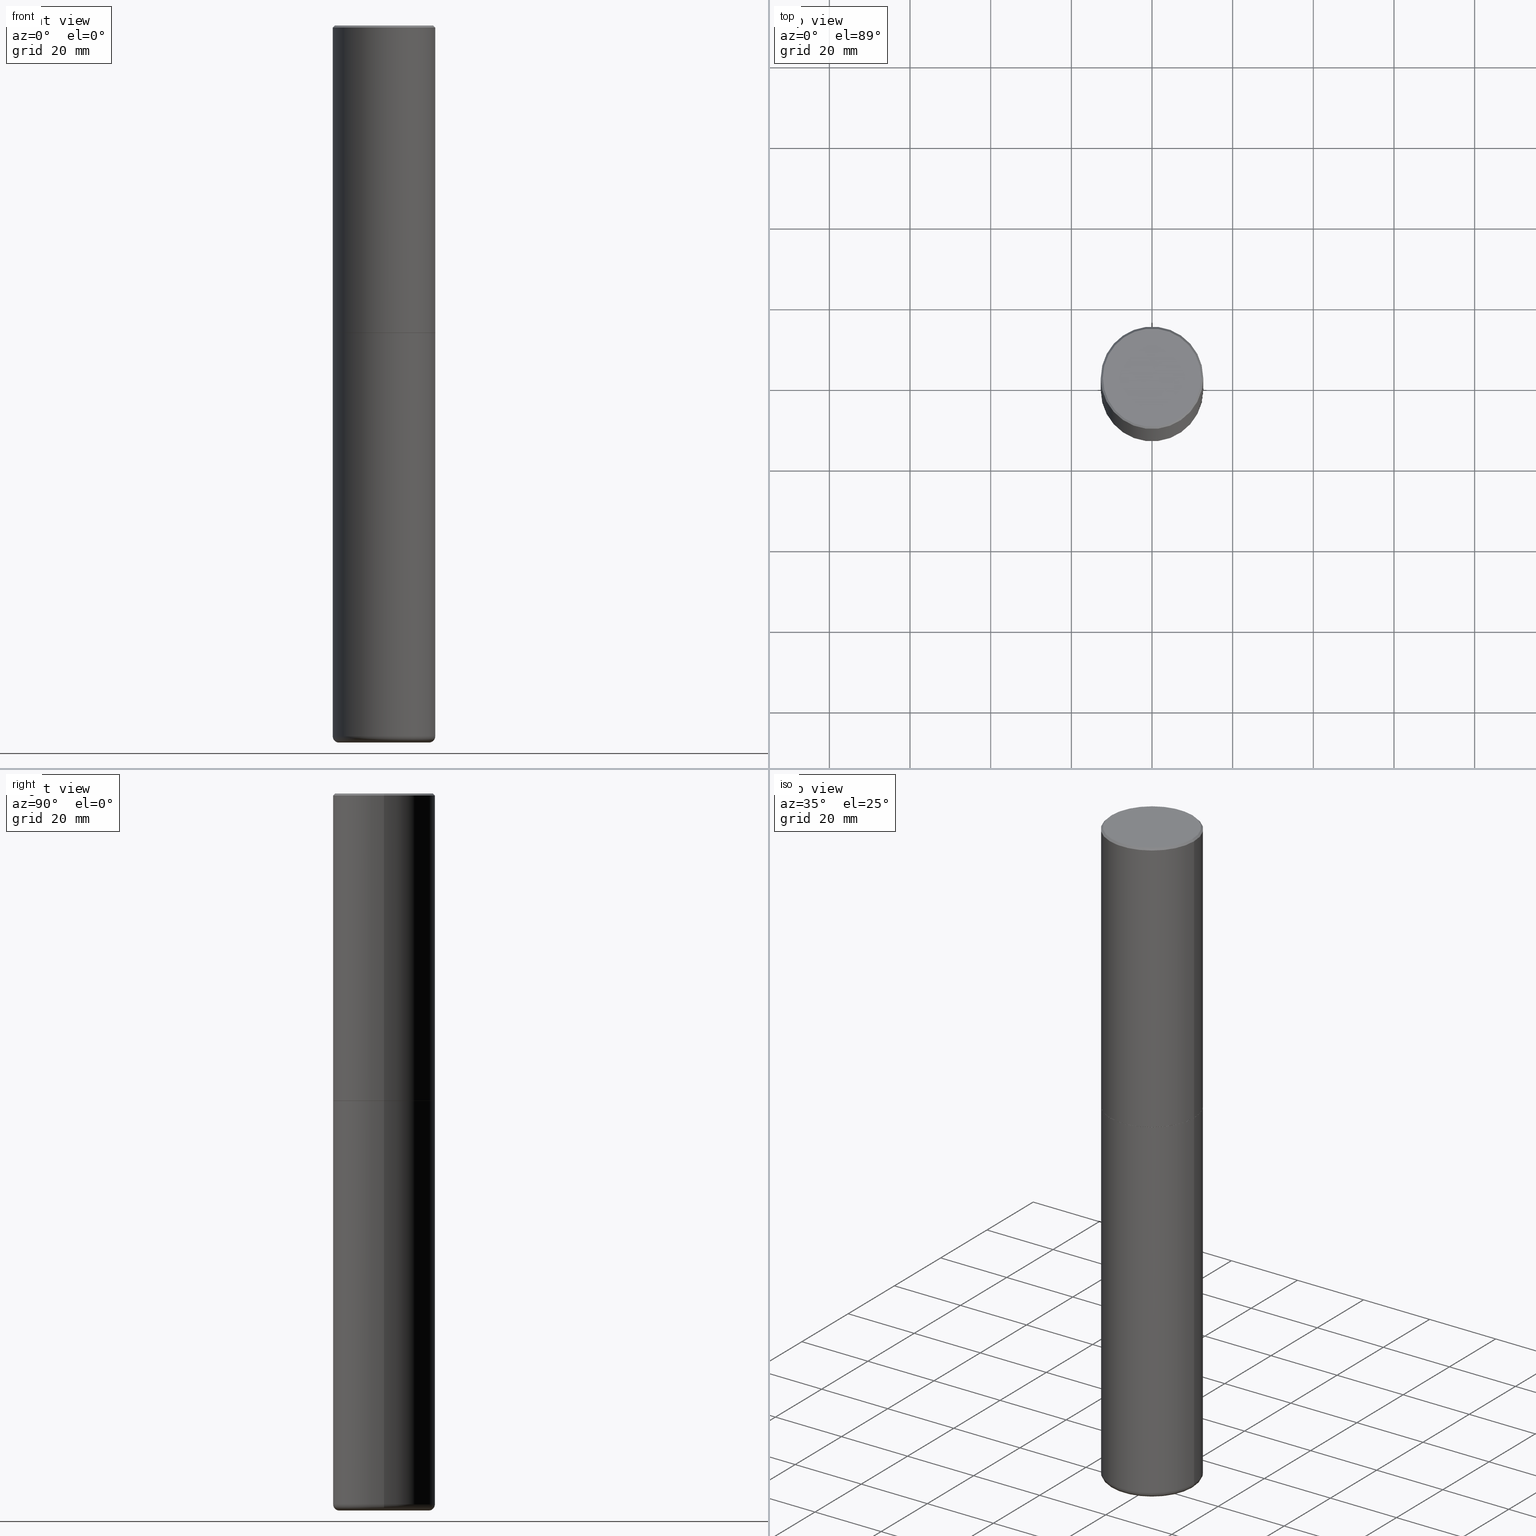
[diagram: canonical four-view strip — front | top / right | iso, engineering-drawing reading convention]
A machine part, canonical four-view strip (front | top / right | iso — engineering-drawing reading convention). The complete STEP part file that produces these views, byte-faithful:
ISO-10303-21;
HEADER;
FILE_DESCRIPTION (( 'STEP AP203' ),
    '1' );
FILE_NAME ('77334.STEP',
    '2024-03-06T17:10:16',
    ( '' ),
    ( '' ),
    'SwSTEP 2.0',
    'SolidWorks 2023',
    '' );
FILE_SCHEMA (( 'CONFIG_CONTROL_DESIGN' ));
ENDSEC;

DATA;
#1 = MECHANICAL_CONTEXT ( 'NONE', #273, 'mechanical' ) ;
#2 = EDGE_CURVE ( 'NONE', #111, #370, #243, .T. ) ;
#3 = CARTESIAN_POINT ( 'NONE',  ( 4.890937612370299433E-31, -6.982962677686328587E-17, -0.02000000000000010797 ) ) ;
#4 = CC_DESIGN_PERSON_AND_ORGANIZATION_ASSIGNMENT ( #119, #381, ( #388 ) ) ;
#5 = CARTESIAN_POINT ( 'NONE',  ( 7.336406418555408669E-29, -1.047444401652943478E-14, -2.999999999999999556 ) ) ;
#6 = CALENDAR_DATE ( 2024, 6, 3 ) ;
#7 = DIRECTION ( 'NONE',  ( 1.000000000000000000, -6.982962677686266711E-15, 0.000000000000000000 ) ) ;
#8 = EDGE_CURVE ( 'NONE', #112, #251, #306, .T. ) ;
#9 = DIRECTION ( 'NONE',  ( 1.000000000000000000, -6.982962677686269077E-15, 0.000000000000000000 ) ) ;
#10 = DIRECTION ( 'NONE',  ( -2.445468806185136597E-29, 3.491481338843145583E-15, 1.000000000000000000 ) ) ;
#11 = MANIFOLD_SOLID_BREP ( 'Body-Move/Copy2[1]', #140 ) ;
#12 = LINE ( 'NONE', #134, #163 ) ;
#13 = DIRECTION ( 'NONE',  ( -2.445468806185136597E-29, 3.491481338843145583E-15, 1.000000000000000000 ) ) ;
#14 = ORIENTED_EDGE ( 'NONE', *, *, #53, .F. ) ;
#15 = DIMENSIONAL_EXPONENTS ( 1.000000000000000000, 0.000000000000000000, 0.000000000000000000, 0.000000000000000000, 0.000000000000000000, 0.000000000000000000, 0.000000000000000000 ) ;
#16 = VERTEX_POINT ( 'NONE', #216 ) ;
#17 = ORIENTED_EDGE ( 'NONE', *, *, #8, .F. ) ;
#18 = TOROIDAL_SURFACE ( 'NONE', #89, 0.4400000000000000022, 0.06000000000000051820 ) ;
#19 = ORIENTED_EDGE ( 'NONE', *, *, #115, .F. ) ;
#20 = EDGE_LOOP ( 'NONE', ( #276, #247, #108, #43 ) ) ;
#21 = DIRECTION ( 'NONE',  ( -1.000000000000000000, 6.982962677686265922E-15, 0.000000000000000000 ) ) ;
#22 = EDGE_CURVE ( 'NONE', #258, #331, #172, .T. ) ;
#23 = ORIENTED_EDGE ( 'NONE', *, *, #115, .T. ) ;
#24 = AXIS2_PLACEMENT_3D ( 'NONE', #320, #356, #92 ) ;
#25 = EDGE_CURVE ( 'NONE', #258, #281, #99, .T. ) ;
#26 = PLANE ( 'NONE',  #377 ) ;
#27 = APPLICATION_PROTOCOL_DEFINITION ( 'international standard', 'config_control_design', 1994, #273 ) ;
#28 = ORIENTED_EDGE ( 'NONE', *, *, #68, .T. ) ;
#29 =( GEOMETRIC_REPRESENTATION_CONTEXT ( 3 ) GLOBAL_UNCERTAINTY_ASSIGNED_CONTEXT ( ( #252 ) ) GLOBAL_UNIT_ASSIGNED_CONTEXT ( ( #260, #409, #350 ) ) REPRESENTATION_CONTEXT ( 'NONE', 'WORKASPACE' ) );
#30 = CC_DESIGN_APPROVAL ( #236, ( #394 ) ) ;
#31 = FACE_OUTER_BOUND ( 'NONE', #280, .T. ) ;
#32 = DIRECTION ( 'NONE',  ( 1.000000000000000000, -6.982962677686265922E-15, 0.000000000000000000 ) ) ;
#33 = DIRECTION ( 'NONE',  ( -2.445468806185136597E-29, 3.491481338843145583E-15, 1.000000000000000000 ) ) ;
#34 = PRODUCT_DEFINITION ( 'UNKNOWN', '', #388, #239 ) ;
#35 = CIRCLE ( 'NONE', #66, 0.4989999999999999991 ) ;
#36 = CARTESIAN_POINT ( 'NONE',  ( 0.4400000000000000022, -2.730338406975338551E-14, -6.939999999999999503 ) ) ;
#37 = PRODUCT_RELATED_PRODUCT_CATEGORY ( 'detail', '', ( #355 ) ) ;
#38 = CARTESIAN_POINT ( 'NONE',  ( 0.5000000000000002220, -2.772236183041456530E-14, -6.939999999999999503 ) ) ;
#39 = DIRECTION ( 'NONE',  ( 2.438088387897960049E-29, -3.491481338843145188E-15, -1.000000000000000000 ) ) ;
#40 = DIRECTION ( 'NONE',  ( -1.000000000000000000, 6.982962677686265922E-15, -4.876176775795935793E-29 ) ) ;
#41 = AXIS2_PLACEMENT_3D ( 'NONE', #168, #389, #360 ) ;
#42 = ADVANCED_FACE ( 'NONE', ( #105 ), #174, .T. ) ;
#43 = ORIENTED_EDGE ( 'NONE', *, *, #179, .F. ) ;
#44 = CARTESIAN_POINT ( 'NONE',  ( 0.5000000000000002220, -3.491481338843134933E-15, 2.438088387897969017E-29 ) ) ;
#45 = CARTESIAN_POINT ( 'NONE',  ( 1.711828164329595618E-28, -2.444036937190202184E-14, -7.000000000000000888 ) ) ;
#46 = EDGE_LOOP ( 'NONE', ( #337, #305 ) ) ;
#47 = EDGE_CURVE ( 'NONE', #238, #16, #405, .T. ) ;
#48 = DIRECTION ( 'NONE',  ( 1.000000000000000000, -6.982962677686266711E-15, 4.874852205035277589E-29 ) ) ;
#49 = CARTESIAN_POINT ( 'NONE',  ( 7.336406418555408669E-29, -1.047444401652943478E-14, -2.999999999999999556 ) ) ;
#50 = CARTESIAN_POINT ( 'NONE',  ( 0.4989999999999999991, -1.395894239269488369E-14, -2.999999999999999556 ) ) ;
#51 = AXIS2_PLACEMENT_3D ( 'NONE', #408, #375, #412 ) ;
#52 = VECTOR ( 'NONE', #164, 39.37007874015748143 ) ;
#53 = EDGE_CURVE ( 'NONE', #251, #331, #166, .T. ) ;
#54 = PERSON_AND_ORGANIZATION_ROLE ( 'creator' ) ;
#55 = PLANE ( 'NONE',  #256 ) ;
#56 = DATE_TIME_ROLE ( 'creation_date' ) ;
#57 = PERSON_AND_ORGANIZATION ( #149, #151 ) ;
#58 = ADVANCED_FACE ( 'NONE', ( #31 ), #193, .F. ) ;
#59 = DIRECTION ( 'NONE',  ( 7.105427357601001859E-15, 1.000000000000000000, -3.491481338843145583E-15 ) ) ;
#60 = AXIS2_PLACEMENT_3D ( 'NONE', #36, #232, #267 ) ;
#61 = FACE_OUTER_BOUND ( 'NONE', #20, .T. ) ;
#62 = PERSON_AND_ORGANIZATION_ROLE ( 'classification_officer' ) ;
#63 = DIRECTION ( 'NONE',  ( -1.000000000000000000, 7.105427357600994759E-15, 0.000000000000000000 ) ) ;
#64 = EDGE_CURVE ( 'NONE', #16, #238, #82, .T. ) ;
#65 = FACE_OUTER_BOUND ( 'NONE', #192, .T. ) ;
#66 = AXIS2_PLACEMENT_3D ( 'NONE', #246, #328, #335 ) ;
#67 = DIRECTION ( 'NONE',  ( -2.445468806185136597E-29, 3.491481338843145583E-15, 1.000000000000000000 ) ) ;
#68 = EDGE_CURVE ( 'NONE', #395, #331, #311, .T. ) ;
#69 = DIRECTION ( 'NONE',  ( -2.445468806185136597E-29, 3.491481338843145583E-15, 1.000000000000000000 ) ) ;
#70 = ORIENTED_EDGE ( 'NONE', *, *, #47, .T. ) ;
#71 = ORIENTED_EDGE ( 'NONE', *, *, #374, .F. ) ;
#72 = AXIS2_PLACEMENT_3D ( 'NONE', #322, #67, #97 ) ;
#73 = CIRCLE ( 'NONE', #329, 0.5000000000000001110 ) ;
#74 = DIRECTION ( 'NONE',  ( -2.445468806185136597E-29, 3.491481338843145583E-15, 1.000000000000000000 ) ) ;
#75 = APPROVAL ( #160, 'UNSPECIFIED' ) ;
#76 = CARTESIAN_POINT ( 'NONE',  ( -2.922783960138615261E-45, 4.172960877065252270E-31, 1.195183497228115035E-16 ) ) ;
#77 = DIRECTION ( 'NONE',  ( -1.000000000000000000, 6.982962677686265922E-15, -4.876176775795935793E-29 ) ) ;
#78 = ORIENTED_EDGE ( 'NONE', *, *, #213, .F. ) ;
#79 = ORIENTED_EDGE ( 'NONE', *, *, #240, .F. ) ;
#80 = EDGE_LOOP ( 'NONE', ( #17, #245, #28, #14 ) ) ;
#81 = DIRECTION ( 'NONE',  ( 1.000000000000000000, -6.982962677686269077E-15, 0.000000000000000000 ) ) ;
#82 = CIRCLE ( 'NONE', #72, 0.5000000000000000000 ) ;
#83 = ORIENTED_EDGE ( 'NONE', *, *, #53, .T. ) ;
#84 = VERTEX_POINT ( 'NONE', #297 ) ;
#85 = PERSON_AND_ORGANIZATION ( #149, #151 ) ;
#86 = ORIENTED_EDGE ( 'NONE', *, *, #289, .F. ) ;
#87 = DIRECTION ( 'NONE',  ( 0.7071067811867406405, -2.468850131084279700E-15, 0.7071067811863543939 ) ) ;
#88 = CLOSED_SHELL ( 'NONE', ( #274, #194, #358, #268, #343, #167, #58, #348 ) ) ;
#89 = AXIS2_PLACEMENT_3D ( 'NONE', #122, #323, #228 ) ;
#90 = DATE_AND_TIME ( #118, #265 ) ;
#91 = EDGE_CURVE ( 'NONE', #112, #395, #158, .T. ) ;
#92 = DIRECTION ( 'NONE',  ( 1.000000000000000000, -6.982962677686266711E-15, 4.876176775795935793E-29 ) ) ;
#93 = DIRECTION ( 'NONE',  ( 1.000000000000000000, -6.982962677686265922E-15, 0.000000000000000000 ) ) ;
#94 = CIRCLE ( 'NONE', #340, 0.4400000000000000022 ) ;
#95 = LOCAL_TIME ( 12, 10, 16.00000000000000000, #130 ) ;
#96 = DIRECTION ( 'NONE',  ( -0.7071067811865457964, 2.468850131082238917E-15, -0.7071067811865492381 ) ) ;
#97 = DIRECTION ( 'NONE',  ( 1.000000000000000000, -6.982962677686266711E-15, 0.000000000000000000 ) ) ;
#98 = CARTESIAN_POINT ( 'NONE',  ( 0.000000000000000000, 0.000000000000000000, 0.000000000000000000 ) ) ;
#99 = CIRCLE ( 'NONE', #415, 0.5000000000000003331 ) ;
#100 = CONICAL_SURFACE ( 'NONE', #406, 0.4989999999999999991, 0.7853981633977213939 ) ;
#101 = LINE ( 'NONE', #170, #294 ) ;
#102 = FACE_OUTER_BOUND ( 'NONE', #46, .T. ) ;
#103 = DIRECTION ( 'NONE',  ( -2.445468806185136877E-29, 3.491481338843145188E-15, 1.000000000000000000 ) ) ;
#104 = DIRECTION ( 'NONE',  ( 1.000000000000000000, -6.982962677686266711E-15, 4.876176775795935793E-29 ) ) ;
#105 = FACE_OUTER_BOUND ( 'NONE', #150, .T. ) ;
#106 = ORIENTED_EDGE ( 'NONE', *, *, #91, .F. ) ;
#107 = CARTESIAN_POINT ( 'NONE',  ( 0.4400000000000000022, -2.751287295008397541E-14, -7.000000000000000888 ) ) ;
#108 = ORIENTED_EDGE ( 'NONE', *, *, #64, .F. ) ;
#109 = CARTESIAN_POINT ( 'NONE',  ( -0.5000000000000003331, -1.717677402183223054E-15, -2.999000000000000110 ) ) ;
#110 = DIRECTION ( 'NONE',  ( -2.445468806185136597E-29, 3.491481338843145583E-15, 1.000000000000000000 ) ) ;
#111 = VERTEX_POINT ( 'NONE', #161 ) ;
#112 = VERTEX_POINT ( 'NONE', #291 ) ;
#113 = CIRCLE ( 'NONE', #351, 0.5000000000000001110 ) ;
#114 = CONICAL_SURFACE ( 'NONE', #312, 0.5000000000000001110, 0.7853981633974458365 ) ;
#115 = EDGE_CURVE ( 'NONE', #370, #201, #123, .T. ) ;
#116 = PERSON_AND_ORGANIZATION ( #149, #151 ) ;
#117 = CIRCLE ( 'NONE', #220, 0.5000000000000003331 ) ;
#118 = CALENDAR_DATE ( 2024, 6, 3 ) ;
#119 = PERSON_AND_ORGANIZATION ( #149, #151 ) ;
#120 = CARTESIAN_POINT ( 'NONE',  ( 0.4989999999999999991, -1.395894239269488369E-14, -2.999999999999999556 ) ) ;
#121 = APPROVAL_STATUS ( 'not_yet_approved' ) ;
#122 = CARTESIAN_POINT ( 'NONE',  ( 1.697155351492484915E-28, -2.423088049157142879E-14, -6.939999999999999503 ) ) ;
#123 = CIRCLE ( 'NONE', #60, 0.06000000000000051820 ) ;
#124 = APPROVAL_ROLE ( '' ) ;
#125 = AXIS2_PLACEMENT_3D ( 'NONE', #359, #200, #40 ) ;
#126 = CC_DESIGN_DATE_AND_TIME_ASSIGNMENT ( #188, #56, ( #34 ) ) ;
#127 = DIRECTION ( 'NONE',  ( -2.445468806185136597E-29, 3.491481338843145583E-15, 1.000000000000000000 ) ) ;
#128 = CARTESIAN_POINT ( 'NONE',  ( 0.5000000000000001110, -3.500078625662629868E-15, -0.02000000000000010797 ) ) ;
#129 = EDGE_CURVE ( 'NONE', #111, #84, #372, .T. ) ;
#130 = COORDINATED_UNIVERSAL_TIME_OFFSET ( 5, 0, .BEHIND. ) ;
#131 = VECTOR ( 'NONE', #259, 39.37007874015748143 ) ;
#132 = VECTOR ( 'NONE', #304, 39.37007874015748143 ) ;
#133 = EDGE_LOOP ( 'NONE', ( #136, #146, #187, #78 ) ) ;
#134 = CARTESIAN_POINT ( 'NONE',  ( -0.5000000000000000000, 3.552713678800500929E-15, -2.459467545127452891E-29 ) ) ;
#135 = DIRECTION ( 'NONE',  ( 1.000000000000000000, -6.982962677686265922E-15, 0.000000000000000000 ) ) ;
#136 = ORIENTED_EDGE ( 'NONE', *, *, #22, .F. ) ;
#137 = ADVANCED_FACE ( 'NONE', ( #292 ), #18, .T. ) ;
#138 = LINE ( 'NONE', #44, #132 ) ;
#139 = ORIENTED_EDGE ( 'NONE', *, *, #68, .F. ) ;
#140 = CLOSED_SHELL ( 'NONE', ( #155, #137, #327, #42, #354, #334 ) ) ;
#141 = CARTESIAN_POINT ( 'NONE',  ( -0.5000000000000000000, -1.379994857524993085E-14, -2.999999999999999556 ) ) ;
#142 = AXIS2_PLACEMENT_3D ( 'NONE', #49, #145, #217 ) ;
#143 = DIRECTION ( 'NONE',  ( -2.445468806185136597E-29, 3.491481338843145583E-15, 1.000000000000000000 ) ) ;
#144 = ORIENTED_EDGE ( 'NONE', *, *, #25, .F. ) ;
#145 = DIRECTION ( 'NONE',  ( -2.445468806185136597E-29, 3.491481338843145583E-15, 1.000000000000000000 ) ) ;
#146 = ORIENTED_EDGE ( 'NONE', *, *, #25, .T. ) ;
#147 = EDGE_LOOP ( 'NONE', ( #106, #249, #83, #402 ) ) ;
#148 = EDGE_CURVE ( 'NONE', #201, #84, #416, .T. ) ;
#149 = PERSON ( 'UNSPECIFIED', 'UNSPECIFIED', 'UNSPECIFIED', ('UNSPECIFIED'), ('UNSPECIFIED'), ('UNSPECIFIED') ) ;
#150 = EDGE_LOOP ( 'NONE', ( #79, #342, #293, #400 ) ) ;
#151 = ORGANIZATION ( 'UNSPECIFIED', 'UNSPECIFIED', '' ) ;
#152 = CC_DESIGN_APPROVAL ( #75, ( #388 ) ) ;
#153 = CALENDAR_DATE ( 2024, 6, 3 ) ;
#154 = DIRECTION ( 'NONE',  ( 2.438088387897960049E-29, -3.491481338843145188E-15, -1.000000000000000000 ) ) ;
#155 = ADVANCED_FACE ( 'NONE', ( #61 ), #162, .T. ) ;
#156 = AXIS2_PLACEMENT_3D ( 'NONE', #385, #59, #63 ) ;
#157 = COORDINATED_UNIVERSAL_TIME_OFFSET ( 5, 0, .BEHIND. ) ;
#158 = LINE ( 'NONE', #128, #131 ) ;
#159 = MANIFOLD_SOLID_BREP ( 'Body-Move/Copy2[2]', #88 ) ;
#160 = APPROVAL_STATUS ( 'not_yet_approved' ) ;
#161 = CARTESIAN_POINT ( 'NONE',  ( -0.4400000000000000022, -2.099607407366424990E-14, -7.000000000000000888 ) ) ;
#162 = CYLINDRICAL_SURFACE ( 'NONE', #24, 0.5000000000000000000 ) ;
#163 = VECTOR ( 'NONE', #103, 39.37007874015748143 ) ;
#164 = DIRECTION ( 'NONE',  ( -2.445468806185136877E-29, 3.491481338843145188E-15, 1.000000000000000000 ) ) ;
#165 = APPROVAL_DATE_TIME ( #387, #236 ) ;
#166 = LINE ( 'NONE', #198, #287 ) ;
#167 = ADVANCED_FACE ( 'NONE', ( #65 ), #100, .T. ) ;
#168 = CARTESIAN_POINT ( 'NONE',  ( 4.890937612370299433E-31, -6.982962677686328587E-17, -0.02000000000000010797 ) ) ;
#169 = AXIS2_PLACEMENT_3D ( 'NONE', #367, #10, #104 ) ;
#170 = CARTESIAN_POINT ( 'NONE',  ( -0.4989999999999999991, -6.928835765086534855E-15, -2.999999999999999556 ) ) ;
#171 = CARTESIAN_POINT ( 'NONE',  ( 0.5000000000000001110, -3.500078625662629868E-15, -0.02000000000000010797 ) ) ;
#172 = LINE ( 'NONE', #207, #283 ) ;
#173 = ORIENTED_EDGE ( 'NONE', *, *, #129, .T. ) ;
#174 = CYLINDRICAL_SURFACE ( 'NONE', #51, 0.5000000000000000000 ) ;
#175 = ORIENTED_EDGE ( 'NONE', *, *, #2, .T. ) ;
#176 = DIRECTION ( 'NONE',  ( 1.000000000000000000, -6.982962677686262766E-15, 0.000000000000000000 ) ) ;
#177 = AXIS2_PLACEMENT_3D ( 'NONE', #76, #143, #391 ) ;
#178 = ORIENTED_EDGE ( 'NONE', *, *, #227, .F. ) ;
#179 = EDGE_CURVE ( 'NONE', #201, #16, #189, .T. ) ;
#180 = LINE ( 'NONE', #50, #197 ) ;
#181 = CC_DESIGN_PERSON_AND_ORGANIZATION_ASSIGNMENT ( #417, #376, ( #388 ) ) ;
#182 = ORIENTED_EDGE ( 'NONE', *, *, #374, .T. ) ;
#183 = AXIS2_PLACEMENT_3D ( 'NONE', #282, #399, #48 ) ;
#184 = COORDINATED_UNIVERSAL_TIME_OFFSET ( 5, 0, .BEHIND. ) ;
#185 = EDGE_CURVE ( 'NONE', #370, #111, #94, .T. ) ;
#186 = PERSON_AND_ORGANIZATION ( #149, #151 ) ;
#187 = ORIENTED_EDGE ( 'NONE', *, *, #410, .T. ) ;
#188 = DATE_AND_TIME ( #191, #288 ) ;
#189 = LINE ( 'NONE', #324, #52 ) ;
#190 = CIRCLE ( 'NONE', #345, 0.4989999999999999991 ) ;
#191 = CALENDAR_DATE ( 2024, 6, 3 ) ;
#192 = EDGE_LOOP ( 'NONE', ( #178, #341, #308, #144 ) ) ;
#193 = PLANE ( 'NONE',  #212 ) ;
#194 = ADVANCED_FACE ( 'NONE', ( #269 ), #386, .T. ) ;
#195 = COORDINATED_UNIVERSAL_TIME_OFFSET ( 5, 0, .BEHIND. ) ;
#196 = CARTESIAN_POINT ( 'NONE',  ( 7.336406418555408669E-29, -1.047444401652943478E-14, -2.999999999999999556 ) ) ;
#197 = VECTOR ( 'NONE', #87, 39.37007874015748143 ) ;
#198 = CARTESIAN_POINT ( 'NONE',  ( -0.5000000000000001110, 3.421651712066270452E-15, -0.02000000000000010797 ) ) ;
#199 = FACE_OUTER_BOUND ( 'NONE', #303, .T. ) ;
#200 = DIRECTION ( 'NONE',  ( 2.438088387897960049E-29, -3.491481338843145188E-15, -1.000000000000000000 ) ) ;
#201 = VERTEX_POINT ( 'NONE', #38 ) ;
#202 = APPROVAL_PERSON_ORGANIZATION ( #186, #384, #218 ) ;
#203 = VERTEX_POINT ( 'NONE', #120 ) ;
#204 = LOCAL_TIME ( 12, 10, 16.00000000000000000, #195 ) ;
#205 = DIRECTION ( 'NONE',  ( 1.000000000000000000, -6.982962677686265922E-15, 0.000000000000000000 ) ) ;
#206 = CC_DESIGN_PERSON_AND_ORGANIZATION_ASSIGNMENT ( #85, #226, ( #355 ) ) ;
#207 = CARTESIAN_POINT ( 'NONE',  ( -0.5000000000000002220, 3.552713678800502507E-15, -2.459467545127454012E-29 ) ) ;
#208 = EDGE_LOOP ( 'NONE', ( #211, #70 ) ) ;
#209 = ORIENTED_EDGE ( 'NONE', *, *, #316, .F. ) ;
#210 = FACE_OUTER_BOUND ( 'NONE', #396, .T. ) ;
#211 = ORIENTED_EDGE ( 'NONE', *, *, #64, .T. ) ;
#212 = AXIS2_PLACEMENT_3D ( 'NONE', #5, #349, #231 ) ;
#213 = EDGE_CURVE ( 'NONE', #331, #395, #113, .T. ) ;
#214 = APPROVAL_PERSON_ORGANIZATION ( #257, #75, #378 ) ;
#215 = CARTESIAN_POINT ( 'NONE',  ( 7.336406418555408669E-29, -1.047444401652943478E-14, -2.999999999999999556 ) ) ;
#216 = CARTESIAN_POINT ( 'NONE',  ( 0.5000000000000000000, -1.396592535537256813E-14, -2.999999999999999556 ) ) ;
#217 = DIRECTION ( 'NONE',  ( 1.000000000000000000, -6.982962677686269077E-15, 0.000000000000000000 ) ) ;
#218 = APPROVAL_ROLE ( '' ) ;
#219 = CARTESIAN_POINT ( 'NONE',  ( -0.5000000000000001110, 3.421651712066270452E-15, -0.02000000000000010797 ) ) ;
#220 = AXIS2_PLACEMENT_3D ( 'NONE', #362, #74, #205 ) ;
#221 = APPROVAL_PERSON_ORGANIZATION ( #116, #236, #124 ) ;
#222 = CC_DESIGN_DATE_AND_TIME_ASSIGNMENT ( #285, #413, ( #394 ) ) ;
#223 = DIRECTION ( 'NONE',  ( 0.000000000000000000, 0.000000000000000000, 1.000000000000000000 ) ) ;
#224 = CALENDAR_DATE ( 2024, 6, 3 ) ;
#225 = DIRECTION ( 'NONE',  ( 1.000000000000000000, -6.982962677686269077E-15, 0.000000000000000000 ) ) ;
#226 = PERSON_AND_ORGANIZATION_ROLE ( 'design_owner' ) ;
#227 = EDGE_CURVE ( 'NONE', #407, #258, #101, .T. ) ;
#228 = DIRECTION ( 'NONE',  ( 1.000000000000000000, -6.982962677686270655E-15, 4.883557194083114583E-29 ) ) ;
#229 = TOROIDAL_SURFACE ( 'NONE', #253, 0.4400000000000000022, 0.06000000000000051820 ) ;
#230 = PERSON_AND_ORGANIZATION ( #149, #151 ) ;
#231 = DIRECTION ( 'NONE',  ( 1.000000000000000000, -6.982962677686265922E-15, 4.876176775795935793E-29 ) ) ;
#232 = DIRECTION ( 'NONE',  ( -6.982962677686266711E-15, -1.000000000000000000, 3.491481338843145583E-15 ) ) ;
#233 = APPROVAL_STATUS ( 'not_yet_approved' ) ;
#234 = DIRECTION ( 'NONE',  ( 1.000000000000000000, -6.982962677686266711E-15, 4.876176775795935793E-29 ) ) ;
#235 = CC_DESIGN_APPROVAL ( #384, ( #34 ) ) ;
#236 = APPROVAL ( #233, 'UNSPECIFIED' ) ;
#237 = CARTESIAN_POINT ( 'NONE',  ( 4.978759091833445139E-29, -4.182485660431097497E-14, -7.000000000000000888 ) ) ;
#238 = VERTEX_POINT ( 'NONE', #141 ) ;
#239 = DESIGN_CONTEXT ( 'detailed design', #266, 'design' ) ;
#240 = EDGE_CURVE ( 'NONE', #84, #238, #12, .T. ) ;
#241 = CARTESIAN_POINT ( 'NONE',  ( 1.697155351492484915E-28, -2.423088049157142879E-14, -6.939999999999999503 ) ) ;
#242 = ORIENTED_EDGE ( 'NONE', *, *, #401, .F. ) ;
#243 = CIRCLE ( 'NONE', #382, 0.4400000000000000022 ) ;
#244 = CONICAL_SURFACE ( 'NONE', #41, 0.5000000000000001110, 0.7853981633974458365 ) ;
#245 = ORIENTED_EDGE ( 'NONE', *, *, #91, .T. ) ;
#246 = CARTESIAN_POINT ( 'NONE',  ( 7.336406418555408669E-29, -1.047444401652943478E-14, -2.999999999999999556 ) ) ;
#247 = ORIENTED_EDGE ( 'NONE', *, *, #240, .T. ) ;
#248 = CARTESIAN_POINT ( 'NONE',  ( 1.697155351492484915E-28, -2.423088049157142879E-14, -6.939999999999999503 ) ) ;
#249 = ORIENTED_EDGE ( 'NONE', *, *, #299, .F. ) ;
#250 = EDGE_LOOP ( 'NONE', ( #330, #368, #139, #392 ) ) ;
#251 = VERTEX_POINT ( 'NONE', #397 ) ;
#252 = UNCERTAINTY_MEASURE_WITH_UNIT (LENGTH_MEASURE( 1.000000000000000082E-05 ), #260, 'distance_accuracy_value', 'NONE');
#253 = AXIS2_PLACEMENT_3D ( 'NONE', #241, #69, #398 ) ;
#254 =( LENGTH_UNIT ( ) NAMED_UNIT ( * ) SI_UNIT ( $, .METRE. ) );
#255 = APPROVAL_DATE_TIME ( #90, #384 ) ;
#256 = AXIS2_PLACEMENT_3D ( 'NONE', #237, #39, #77 ) ;
#257 = PERSON_AND_ORGANIZATION ( #149, #151 ) ;
#258 = VERTEX_POINT ( 'NONE', #109 ) ;
#259 = DIRECTION ( 'NONE',  ( 0.7071067811865457964, -7.319954787623249734E-15, -0.7071067811865492381 ) ) ;
#260 =( CONVERSION_BASED_UNIT ( 'INCH', #315 ) LENGTH_UNIT ( ) NAMED_UNIT ( #15 ) );
#261 = EDGE_CURVE ( 'NONE', #84, #201, #73, .T. ) ;
#262 = CARTESIAN_POINT ( 'NONE',  ( 4.890937612370299433E-31, -6.982962677686328587E-17, -0.02000000000000010797 ) ) ;
#263 = DATE_AND_TIME ( #224, #271 ) ;
#264 = DIRECTION ( 'NONE',  ( -2.445468806185136597E-29, 3.491481338843145583E-15, 1.000000000000000000 ) ) ;
#265 = LOCAL_TIME ( 12, 10, 16.00000000000000000, #286 ) ;
#266 = APPLICATION_CONTEXT ( 'configuration controlled 3d designs of mechanical parts and assemblies' ) ;
#267 = DIRECTION ( 'NONE',  ( 1.000000000000000000, -6.982962677686273021E-15, 0.000000000000000000 ) ) ;
#268 = ADVANCED_FACE ( 'NONE', ( #270 ), #114, .T. ) ;
#269 = FACE_OUTER_BOUND ( 'NONE', #250, .T. ) ;
#270 = FACE_OUTER_BOUND ( 'NONE', #147, .T. ) ;
#271 = LOCAL_TIME ( 12, 10, 16.00000000000000000, #157 ) ;
#272 = FACE_OUTER_BOUND ( 'NONE', #80, .T. ) ;
#273 = APPLICATION_CONTEXT ( 'configuration controlled 3d designs of mechanical parts and assemblies' ) ;
#274 = ADVANCED_FACE ( 'NONE', ( #210 ), #363, .T. ) ;
#275 = CARTESIAN_POINT ( 'NONE',  ( 4.890937612370299433E-31, -6.982962677686328587E-17, -0.02000000000000010797 ) ) ;
#276 = ORIENTED_EDGE ( 'NONE', *, *, #148, .T. ) ;
#277 = ORIENTED_EDGE ( 'NONE', *, *, #148, .F. ) ;
#278 = PLANE ( 'NONE',  #125 ) ;
#279 = AXIS2_PLACEMENT_3D ( 'NONE', #98, #418, #234 ) ;
#280 = EDGE_LOOP ( 'NONE', ( #71, #209 ) ) ;
#281 = VERTEX_POINT ( 'NONE', #339 ) ;
#282 = CARTESIAN_POINT ( 'NONE',  ( -2.922783960138615261E-45, 4.172960877065252270E-31, 1.195183497228115035E-16 ) ) ;
#283 = VECTOR ( 'NONE', #301, 39.37007874015748143 ) ;
#284 = ORIENTED_EDGE ( 'NONE', *, *, #227, .T. ) ;
#285 = DATE_AND_TIME ( #153, #204 ) ;
#286 = COORDINATED_UNIVERSAL_TIME_OFFSET ( 5, 0, .BEHIND. ) ;
#287 = VECTOR ( 'NONE', #96, 39.37007874015748143 ) ;
#288 = LOCAL_TIME ( 12, 10, 16.00000000000000000, #184 ) ;
#289 = EDGE_CURVE ( 'NONE', #203, #281, #180, .T. ) ;
#290 = APPROVAL_DATE_TIME ( #263, #75 ) ;
#291 = CARTESIAN_POINT ( 'NONE',  ( 0.4799999999999999267, -3.396558832296482099E-15, 1.195183497228351200E-16 ) ) ;
#292 = FACE_OUTER_BOUND ( 'NONE', #361, .T. ) ;
#293 = ORIENTED_EDGE ( 'NONE', *, *, #179, .T. ) ;
#294 = VECTOR ( 'NONE', #300, 39.37007874015748143 ) ;
#295 = DIRECTION ( 'NONE',  ( -2.445468806185136597E-29, 3.491481338843145583E-15, 1.000000000000000000 ) ) ;
#296 = SHAPE_DEFINITION_REPRESENTATION ( #317, #336 ) ;
#297 = CARTESIAN_POINT ( 'NONE',  ( -0.5000000000000002220, -2.067816681277092470E-14, -6.939999999999999503 ) ) ;
#298 = CYLINDRICAL_SURFACE ( 'NONE', #169, 0.5000000000000002220 ) ;
#299 = EDGE_CURVE ( 'NONE', #251, #112, #325, .T. ) ;
#300 = DIRECTION ( 'NONE',  ( -0.7071067811867406405, 7.493145998871051513E-15, 0.7071067811863543939 ) ) ;
#301 = DIRECTION ( 'NONE',  ( -2.445468806185136877E-29, 3.491481338843145188E-15, 1.000000000000000000 ) ) ;
#302 = ORIENTED_EDGE ( 'NONE', *, *, #2, .F. ) ;
#303 = EDGE_LOOP ( 'NONE', ( #366, #175, #23, #338 ) ) ;
#304 = DIRECTION ( 'NONE',  ( -2.445468806185136877E-29, 3.491481338843145188E-15, 1.000000000000000000 ) ) ;
#305 = ORIENTED_EDGE ( 'NONE', *, *, #8, .T. ) ;
#306 = CIRCLE ( 'NONE', #177, 0.4799999999999999267 ) ;
#307 = ORIENTED_EDGE ( 'NONE', *, *, #185, .F. ) ;
#308 = ORIENTED_EDGE ( 'NONE', *, *, #289, .T. ) ;
#309 = DIRECTION ( 'NONE',  ( 1.000000000000000000, -6.982962677686269077E-15, 0.000000000000000000 ) ) ;
#310 = CC_DESIGN_PERSON_AND_ORGANIZATION_ASSIGNMENT ( #57, #54, ( #34 ) ) ;
#311 = CIRCLE ( 'NONE', #318, 0.5000000000000001110 ) ;
#312 = AXIS2_PLACEMENT_3D ( 'NONE', #275, #403, #21 ) ;
#313 = CARTESIAN_POINT ( 'NONE',  ( 7.336406418555408669E-29, -1.047444401652943478E-14, -2.999999999999999556 ) ) ;
#314 = SECURITY_CLASSIFICATION_LEVEL ( 'unclassified' ) ;
#315 = LENGTH_MEASURE_WITH_UNIT ( LENGTH_MEASURE( 0.02539999999999999897 ), #254 );
#316 = EDGE_CURVE ( 'NONE', #407, #203, #190, .T. ) ;
#317 = PRODUCT_DEFINITION_SHAPE ( 'NONE', 'NONE',  #34 ) ;
#318 = AXIS2_PLACEMENT_3D ( 'NONE', #3, #127, #32 ) ;
#319 = CC_DESIGN_PERSON_AND_ORGANIZATION_ASSIGNMENT ( #230, #62, ( #394 ) ) ;
#320 = CARTESIAN_POINT ( 'NONE',  ( 0.000000000000000000, 0.000000000000000000, 0.000000000000000000 ) ) ;
#321 = ORIENTED_EDGE ( 'NONE', *, *, #185, .T. ) ;
#322 = CARTESIAN_POINT ( 'NONE',  ( 7.336406418555408669E-29, -1.047444401652943478E-14, -2.999999999999999556 ) ) ;
#323 = DIRECTION ( 'NONE',  ( -2.445468806185136597E-29, 3.491481338843145583E-15, 1.000000000000000000 ) ) ;
#324 = CARTESIAN_POINT ( 'NONE',  ( 0.5000000000000000000, -3.491481338843133355E-15, 2.438088387897967896E-29 ) ) ;
#325 = CIRCLE ( 'NONE', #183, 0.4799999999999999267 ) ;
#326 = DIRECTION ( 'NONE',  ( 1.000000000000000000, -6.982962677686262766E-15, 0.000000000000000000 ) ) ;
#327 = ADVANCED_FACE ( 'NONE', ( #404 ), #26, .F. ) ;
#328 = DIRECTION ( 'NONE',  ( -2.445468806185136597E-29, 3.491481338843145583E-15, 1.000000000000000000 ) ) ;
#329 = AXIS2_PLACEMENT_3D ( 'NONE', #248, #369, #309 ) ;
#330 = ORIENTED_EDGE ( 'NONE', *, *, #401, .T. ) ;
#331 = VERTEX_POINT ( 'NONE', #219 ) ;
#332 = CARTESIAN_POINT ( 'NONE',  ( -0.4989999999999999991, -6.923537310738311664E-15, -2.999999999999999556 ) ) ;
#333 = CARTESIAN_POINT ( 'NONE',  ( 7.333960949749225308E-29, -1.047095253519059177E-14, -2.999000000000000110 ) ) ;
#334 = ADVANCED_FACE ( 'NONE', ( #346 ), #55, .T. ) ;
#335 = DIRECTION ( 'NONE',  ( 1.000000000000000000, -6.982962677686269077E-15, 0.000000000000000000 ) ) ;
#336 = ADVANCED_BREP_SHAPE_REPRESENTATION ( '77334', ( #11, #159, #383 ), #29 ) ;
#337 = ORIENTED_EDGE ( 'NONE', *, *, #299, .T. ) ;
#338 = ORIENTED_EDGE ( 'NONE', *, *, #261, .F. ) ;
#339 = CARTESIAN_POINT ( 'NONE',  ( 0.5000000000000003331, -1.396243387403372828E-14, -2.999000000000000110 ) ) ;
#340 = AXIS2_PLACEMENT_3D ( 'NONE', #357, #295, #326 ) ;
#341 = ORIENTED_EDGE ( 'NONE', *, *, #316, .T. ) ;
#342 = ORIENTED_EDGE ( 'NONE', *, *, #261, .T. ) ;
#343 = ADVANCED_FACE ( 'NONE', ( #390 ), #298, .T. ) ;
#344 = APPLICATION_PROTOCOL_DEFINITION ( 'international standard', 'config_control_design', 1994, #266 ) ;
#345 = AXIS2_PLACEMENT_3D ( 'NONE', #313, #110, #81 ) ;
#346 = FACE_OUTER_BOUND ( 'NONE', #373, .T. ) ;
#347 = CARTESIAN_POINT ( 'NONE',  ( 0.000000000000000000, 0.000000000000000000, 0.000000000000000000 ) ) ;
#348 = ADVANCED_FACE ( 'NONE', ( #102 ), #278, .F. ) ;
#349 = DIRECTION ( 'NONE',  ( -2.438088387897960049E-29, 3.491481338843145188E-15, 1.000000000000000000 ) ) ;
#350 =( NAMED_UNIT ( * ) SI_UNIT ( $, .STERADIAN. ) SOLID_ANGLE_UNIT ( ) );
#351 = AXIS2_PLACEMENT_3D ( 'NONE', #262, #380, #93 ) ;
#352 = CARTESIAN_POINT ( 'NONE',  ( 1.697155351492484915E-28, -2.423088049157142879E-14, -6.939999999999999503 ) ) ;
#353 = CARTESIAN_POINT ( 'NONE',  ( 7.336406418555408669E-29, -1.047444401652943478E-14, -2.999999999999999556 ) ) ;
#354 = ADVANCED_FACE ( 'NONE', ( #199 ), #229, .T. ) ;
#355 = PRODUCT ( '77334', '77334', '', ( #1 ) ) ;
#356 = DIRECTION ( 'NONE',  ( -2.445468806185136597E-29, 3.491481338843145583E-15, 1.000000000000000000 ) ) ;
#357 = CARTESIAN_POINT ( 'NONE',  ( 1.711828164329595618E-28, -2.444036937190202184E-14, -7.000000000000000888 ) ) ;
#358 = ADVANCED_FACE ( 'NONE', ( #272 ), #244, .T. ) ;
#359 = CARTESIAN_POINT ( 'NONE',  ( 3.351822085289407153E-15, 0.4799999999999999267, -1.616151867783303914E-15 ) ) ;
#360 = DIRECTION ( 'NONE',  ( -1.000000000000000000, 6.982962677686265922E-15, 0.000000000000000000 ) ) ;
#361 = EDGE_LOOP ( 'NONE', ( #321, #173, #277, #19 ) ) ;
#362 = CARTESIAN_POINT ( 'NONE',  ( 7.333960949749225308E-29, -1.047095253519059177E-14, -2.999000000000000110 ) ) ;
#363 = CONICAL_SURFACE ( 'NONE', #142, 0.4989999999999999991, 0.7853981633977213939 ) ;
#364 = CC_DESIGN_SECURITY_CLASSIFICATION ( #394, ( #388 ) ) ;
#365 = DIRECTION ( 'NONE',  ( -2.445468806185136597E-29, 3.491481338843145583E-15, 1.000000000000000000 ) ) ;
#366 = ORIENTED_EDGE ( 'NONE', *, *, #129, .F. ) ;
#367 = CARTESIAN_POINT ( 'NONE',  ( 0.000000000000000000, 0.000000000000000000, 0.000000000000000000 ) ) ;
#368 = ORIENTED_EDGE ( 'NONE', *, *, #22, .T. ) ;
#369 = DIRECTION ( 'NONE',  ( -2.445468806185136597E-29, 3.491481338843145583E-15, 1.000000000000000000 ) ) ;
#370 = VERTEX_POINT ( 'NONE', #107 ) ;
#371 = AXIS2_PLACEMENT_3D ( 'NONE', #353, #264, #7 ) ;
#372 = CIRCLE ( 'NONE', #156, 0.06000000000000051820 ) ;
#373 = EDGE_LOOP ( 'NONE', ( #307, #302 ) ) ;
#374 = EDGE_CURVE ( 'NONE', #203, #407, #35, .T. ) ;
#375 = DIRECTION ( 'NONE',  ( -2.445468806185136597E-29, 3.491481338843145583E-15, 1.000000000000000000 ) ) ;
#376 = PERSON_AND_ORGANIZATION_ROLE ( 'creator' ) ;
#377 = AXIS2_PLACEMENT_3D ( 'NONE', #215, #154, #411 ) ;
#378 = APPROVAL_ROLE ( '' ) ;
#379 = DIRECTION ( 'NONE',  ( -2.445468806185136597E-29, 3.491481338843145583E-15, 1.000000000000000000 ) ) ;
#380 = DIRECTION ( 'NONE',  ( -2.445468806185136597E-29, 3.491481338843145583E-15, 1.000000000000000000 ) ) ;
#381 = PERSON_AND_ORGANIZATION_ROLE ( 'design_supplier' ) ;
#382 = AXIS2_PLACEMENT_3D ( 'NONE', #45, #365, #176 ) ;
#383 = AXIS2_PLACEMENT_3D ( 'NONE', #347, #223, #414 ) ;
#384 = APPROVAL ( #121, 'UNSPECIFIED' ) ;
#385 = CARTESIAN_POINT ( 'NONE',  ( -0.4400000000000000022, -2.110449245422698835E-14, -6.939999999999999503 ) ) ;
#386 = CYLINDRICAL_SURFACE ( 'NONE', #279, 0.5000000000000002220 ) ;
#387 = DATE_AND_TIME ( #6, #95 ) ;
#388 = PRODUCT_DEFINITION_FORMATION_WITH_SPECIFIED_SOURCE ( 'ANY', '', #355, .NOT_KNOWN. ) ;
#389 = DIRECTION ( 'NONE',  ( 2.445468806185136597E-29, -3.491481338843145583E-15, -1.000000000000000000 ) ) ;
#390 = FACE_OUTER_BOUND ( 'NONE', #133, .T. ) ;
#391 = DIRECTION ( 'NONE',  ( 1.000000000000000000, -6.982962677686266711E-15, 4.874852205035277589E-29 ) ) ;
#392 = ORIENTED_EDGE ( 'NONE', *, *, #410, .F. ) ;
#393 = AXIS2_PLACEMENT_3D ( 'NONE', #352, #33, #9 ) ;
#394 = SECURITY_CLASSIFICATION ( '', '', #314 ) ;
#395 = VERTEX_POINT ( 'NONE', #171 ) ;
#396 = EDGE_LOOP ( 'NONE', ( #182, #284, #242, #86 ) ) ;
#397 = CARTESIAN_POINT ( 'NONE',  ( -0.4799999999999999267, 3.386736898677839197E-15, 1.195183497227879609E-16 ) ) ;
#398 = DIRECTION ( 'NONE',  ( 1.000000000000000000, -6.982962677686270655E-15, 4.883557194083114583E-29 ) ) ;
#399 = DIRECTION ( 'NONE',  ( -2.445468806185136597E-29, 3.491481338843145583E-15, 1.000000000000000000 ) ) ;
#400 = ORIENTED_EDGE ( 'NONE', *, *, #47, .F. ) ;
#401 = EDGE_CURVE ( 'NONE', #281, #258, #117, .T. ) ;
#402 = ORIENTED_EDGE ( 'NONE', *, *, #213, .T. ) ;
#403 = DIRECTION ( 'NONE',  ( 2.445468806185136597E-29, -3.491481338843145583E-15, -1.000000000000000000 ) ) ;
#404 = FACE_OUTER_BOUND ( 'NONE', #208, .T. ) ;
#405 = CIRCLE ( 'NONE', #371, 0.5000000000000000000 ) ;
#406 = AXIS2_PLACEMENT_3D ( 'NONE', #196, #379, #225 ) ;
#407 = VERTEX_POINT ( 'NONE', #332 ) ;
#408 = CARTESIAN_POINT ( 'NONE',  ( 0.000000000000000000, 0.000000000000000000, 0.000000000000000000 ) ) ;
#409 =( NAMED_UNIT ( * ) PLANE_ANGLE_UNIT ( ) SI_UNIT ( $, .RADIAN. ) );
#410 = EDGE_CURVE ( 'NONE', #281, #395, #138, .T. ) ;
#411 = DIRECTION ( 'NONE',  ( -1.000000000000000000, 6.982962677686265922E-15, -4.876176775795935793E-29 ) ) ;
#412 = DIRECTION ( 'NONE',  ( 1.000000000000000000, -6.982962677686266711E-15, 4.876176775795935793E-29 ) ) ;
#413 = DATE_TIME_ROLE ( 'classification_date' ) ;
#414 = DIRECTION ( 'NONE',  ( 1.000000000000000000, 0.000000000000000000, 0.000000000000000000 ) ) ;
#415 = AXIS2_PLACEMENT_3D ( 'NONE', #333, #13, #135 ) ;
#416 = CIRCLE ( 'NONE', #393, 0.5000000000000001110 ) ;
#417 = PERSON_AND_ORGANIZATION ( #149, #151 ) ;
#418 = DIRECTION ( 'NONE',  ( -2.445468806185136597E-29, 3.491481338843145583E-15, 1.000000000000000000 ) ) ;
ENDSEC;
END-ISO-10303-21;
